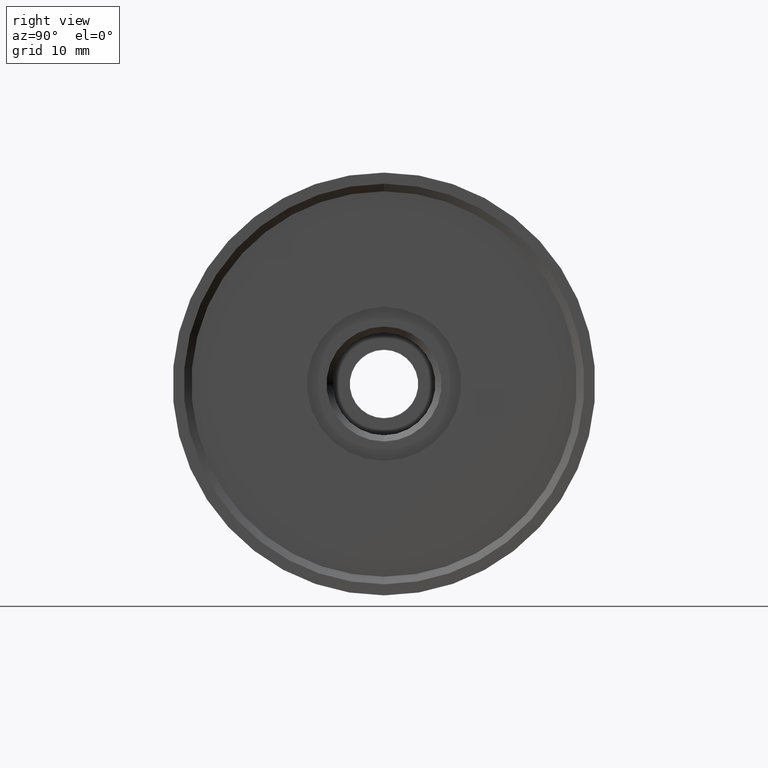
[diagram: clean part render]
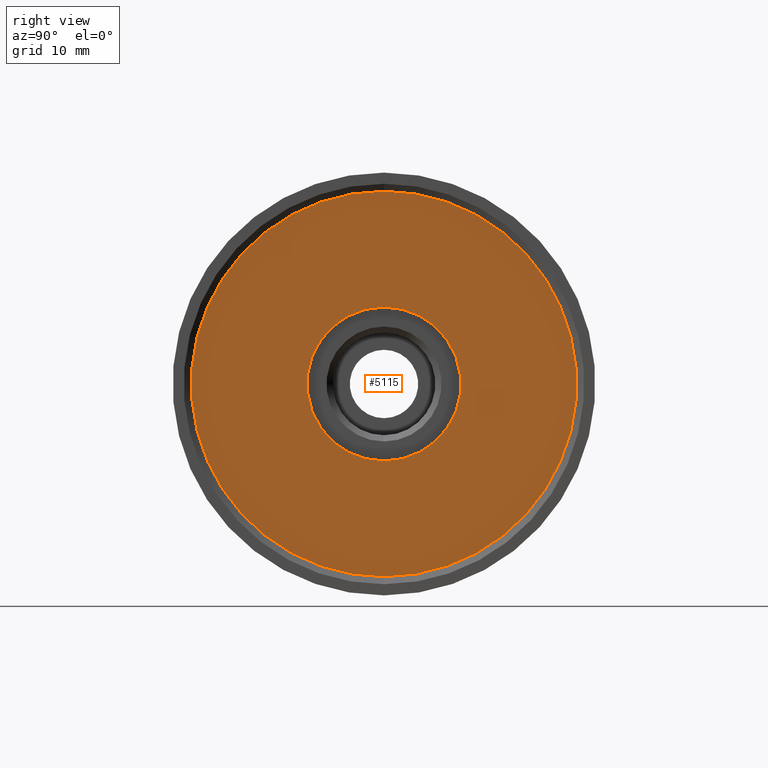
[diagram: same view with one face highlighted and labeled with its STEP entity id]
A machine part, right view. The second image highlights one B-rep face of the part: STEP entity #5115.
In plain terms, the highlighted planar face has unit normal (1, 0, -0).
Its self-contained STEP definition (entity closure, byte-faithful):
#1 = VERTEX_POINT ( 'NONE', #4393 ) ;
#11 = VERTEX_POINT ( 'NONE', #4387 ) ;
#14 = VERTEX_POINT ( 'NONE', #4385 ) ;
#15 = VERTEX_POINT ( 'NONE', #4469 ) ;
#123 = EDGE_LOOP ( 'NONE', ( #391, #392 ) ) ;
#389 = ORIENTED_EDGE ( 'NONE', *, *, #992, .T. ) ;
#390 = ORIENTED_EDGE ( 'NONE', *, *, #4709, .T. ) ;
#391 = ORIENTED_EDGE ( 'NONE', *, *, #993, .F. ) ;
#392 = ORIENTED_EDGE ( 'NONE', *, *, #4707, .F. ) ;
#992 = EDGE_CURVE ( 'NONE', #11, #14, #1138, .T. ) ;
#993 = EDGE_CURVE ( 'NONE', #1, #15, #1139, .T. ) ;
#1138 = CIRCLE ( 'NONE', #1423, 30.99292205499705900 ) ;
#1139 = CIRCLE ( 'NONE', #1424, 12.38000649727518400 ) ;
#1318 = CIRCLE ( 'NONE', #1472, 12.38000649727518400 ) ;
#1320 = CIRCLE ( 'NONE', #1473, 30.99292205499705900 ) ;
#1423 = AXIS2_PLACEMENT_3D ( 'NONE', #1532, #1533, #1534 ) ;
#1424 = AXIS2_PLACEMENT_3D ( 'NONE', #1537, #1538, #1539 ) ;
#1472 = AXIS2_PLACEMENT_3D ( 'NONE', #2165, #2166, #2167 ) ;
#1473 = AXIS2_PLACEMENT_3D ( 'NONE', #2170, #2171, #2172 ) ;
#1532 = CARTESIAN_POINT ( 'NONE',  ( 1.297339386453845200, 0.0000000000000000000, 0.0000000000000000000 ) ) ;
#1533 = DIRECTION ( 'NONE',  ( 1.000000000000000000, -0.0000000000000000000, -0.0000000000000000000 ) ) ;
#1534 = DIRECTION ( 'NONE',  ( 0.0000000000000000000, 0.0000000000000000000, -1.000000000000000000 ) ) ;
#1537 = CARTESIAN_POINT ( 'NONE',  ( 1.297339386453847800, 0.0000000000000000000, 0.0000000000000000000 ) ) ;
#1538 = DIRECTION ( 'NONE',  ( 1.000000000000000000, -0.0000000000000000000, -0.0000000000000000000 ) ) ;
#1539 = DIRECTION ( 'NONE',  ( 0.0000000000000000000, 0.0000000000000000000, -1.000000000000000000 ) ) ;
#2165 = CARTESIAN_POINT ( 'NONE',  ( 1.297339386453847800, 0.0000000000000000000, 0.0000000000000000000 ) ) ;
#2166 = DIRECTION ( 'NONE',  ( 1.000000000000000000, -0.0000000000000000000, -0.0000000000000000000 ) ) ;
#2167 = DIRECTION ( 'NONE',  ( 0.0000000000000000000, 0.0000000000000000000, -1.000000000000000000 ) ) ;
#2170 = CARTESIAN_POINT ( 'NONE',  ( 1.297339386453845200, 0.0000000000000000000, 0.0000000000000000000 ) ) ;
#2171 = DIRECTION ( 'NONE',  ( 1.000000000000000000, -0.0000000000000000000, -0.0000000000000000000 ) ) ;
#2172 = DIRECTION ( 'NONE',  ( 0.0000000000000000000, 0.0000000000000000000, -1.000000000000000000 ) ) ;
#3645 = FACE_OUTER_BOUND ( 'NONE', #4589, .T. ) ;
#4115 = DIRECTION ( 'NONE',  ( 1.000000000000000000, 0.0000000000000000000, -0.0000000000000000000 ) ) ;
#4117 = CARTESIAN_POINT ( 'NONE',  ( 1.297339386453846500, 30.99292205499705900, 0.0000000000000000000 ) ) ;
#4119 = PLANE ( 'NONE',  #4217 ) ;
#4121 = DIRECTION ( 'NONE',  ( -0.0000000000000000000, 0.0000000000000000000, -1.000000000000000000 ) ) ;
#4217 = AXIS2_PLACEMENT_3D ( 'NONE', #4117, #4115, #4121 ) ;
#4385 = CARTESIAN_POINT ( 'NONE',  ( 1.297339386453845200, 3.870060723882985900E-015, 30.99292205499705900 ) ) ;
#4387 = CARTESIAN_POINT ( 'NONE',  ( 1.297339386453845200, 0.0000000000000000000, -30.99292205499705900 ) ) ;
#4393 = CARTESIAN_POINT ( 'NONE',  ( 1.297339386453847800, 0.0000000000000000000, -12.38000649727518400 ) ) ;
#4469 = CARTESIAN_POINT ( 'NONE',  ( 1.297339386453847800, 1.516113533031149200E-015, 12.38000649727518400 ) ) ;
#4517 = FACE_BOUND ( 'NONE', #123, .T. ) ;
#4589 = EDGE_LOOP ( 'NONE', ( #389, #390 ) ) ;
#4707 = EDGE_CURVE ( 'NONE', #15, #1, #1318, .T. ) ;
#4709 = EDGE_CURVE ( 'NONE', #14, #11, #1320, .T. ) ;
#5115 = ADVANCED_FACE ( 'NONE', ( #3645, #4517 ), #4119, .T. ) ;